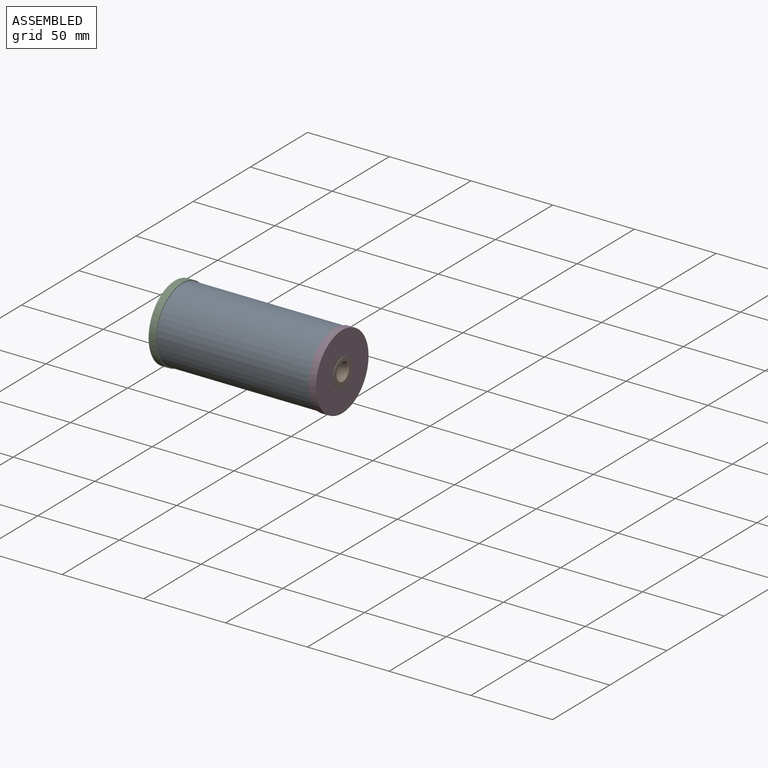
[diagram: assembled view]
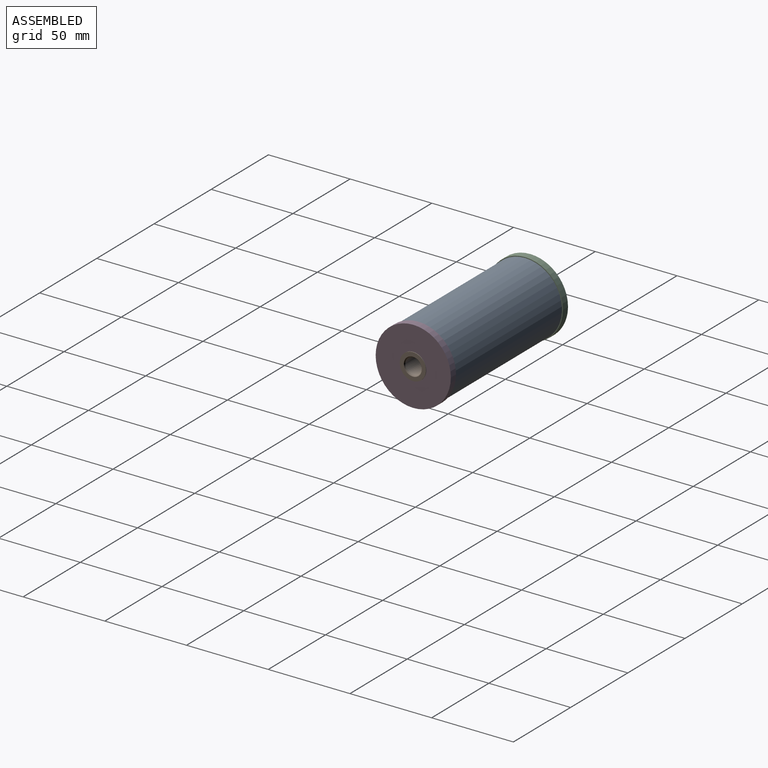
[diagram: assembled view, second angle]
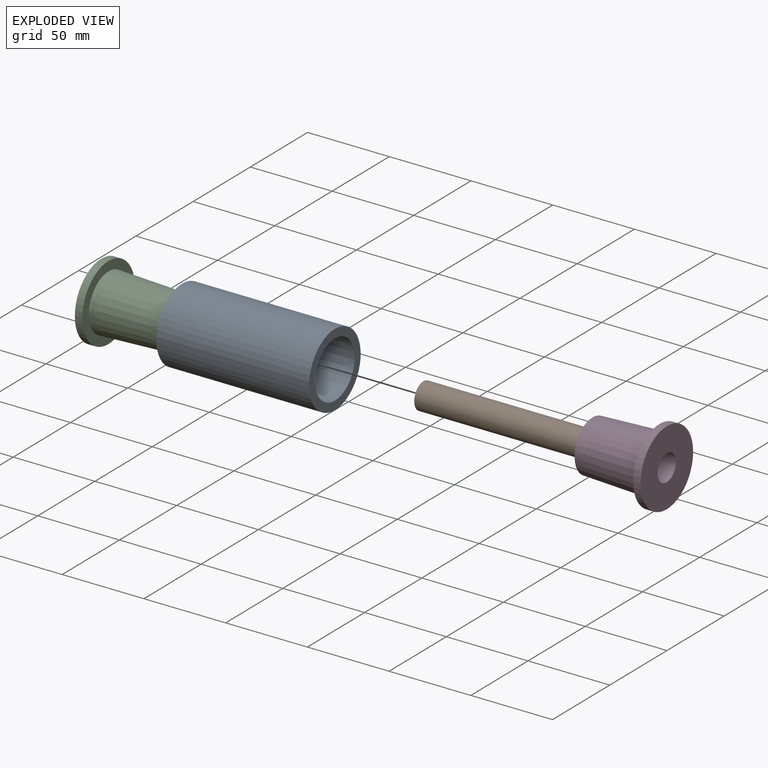
[diagram: exploded view]
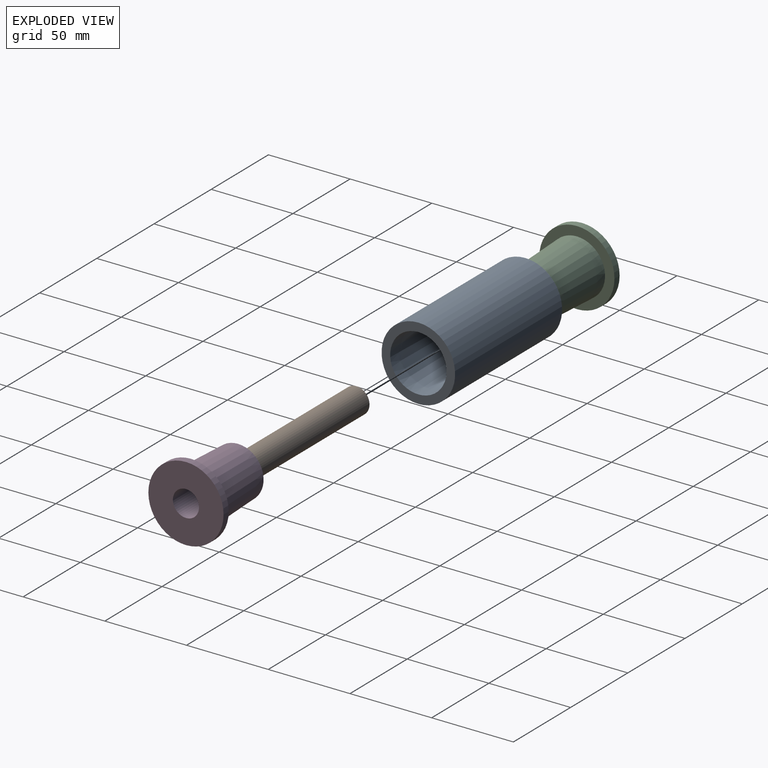
[diagram: exploded view, second angle]
ASSEMBLY  parts=4 mates=4
PART A: 6 faces, bbox 93.5x45x45 mm
  f0: plane 45x45mm, normal (-1,0,0), area 655.6mm2, adj f1,f5
  f1: cone r=15.65mm half-angle=2.2deg, axis (-1,0,0), area 4287.4mm2, adj f0,f2
  f2: cylinder r=15.65mm len=31.3mm, axis (-1,0,0), area 1042.3mm2, adj f1,f3
  f3: cone r=15.65mm half-angle=2.2deg, axis (1,0,0), area 4287.4mm2, adj f2,f4
  f4: plane 45x45mm, normal (1,0,0), area 655.6mm2, adj f3,f5
  f5: cylinder r=22.5mm len=93.5mm, axis (-1,0,0), area 13218.3mm2, adj f0,f4
PART B: 6 faces, bbox 103x16x16 mm
  f0: plane 16x16mm, normal (-1,0,0), area 106mm2, adj f3,f5
  f1: cylinder r=5mm len=102mm, axis (-1,0,0), area 3204.4mm2, adj f4,f5
  f2: plane 16x16mm, normal (1,0,0), area 106mm2, adj f3,f4
  f3: cylinder r=8mm len=103mm, axis (-1,0,0), area 5177.3mm2, adj f0,f2
  f4: cone r=5.5mm half-angle=45deg, axis (1,0,0), area 23.3mm2, adj f1,f2
  f5: cone r=5mm half-angle=45deg, axis (-1,0,0), area 23.3mm2, adj f0,f1
PART C: 6 faces, bbox 45.5x46x46 mm
  f0: plane 46x46mm, normal (1,0,0), area 727.1mm2, adj f1,f5
  f1: cone r=17.25mm half-angle=2.2deg, axis (-1,0,0), area 4239.6mm2, adj f0,f2
  f2: plane 31.28x31.28mm, normal (1,0,0), area 567.3mm2, adj f1,f3
  f3: cylinder r=8mm len=45.5mm, axis (-1,0,0), area 2287.1mm2, adj f2,f4
  f4: plane 46x46mm, normal (-1,0,0), area 1460.8mm2, adj f3,f5
  f5: cylinder r=23mm len=46mm, axis (-1,0,0), area 650.3mm2, adj f0,f4
PART D: same geometry as C
PLACE A rot(axis=(0,0,1),0deg) t=(9.55,83.95,13.97)mm
PLACE B rot(axis=(0,0,1),0deg) t=(4.88,83.95,13.97)mm
PLACE C rot(axis=(0,0,1),0deg) t=(5.12,83.95,13.97)mm
PLACE D rot(axis=(0,0,-1),180deg) t=(107.52,83.95,13.97)mm
MATE cylindrical B.f1 <-> D.f1  axis (-1,0,0) through (56.38,83.95,13.97)mm
MATE cylindrical C.f1 <-> A.f1  axis (-1,0,0) through (30.12,83.95,13.97)mm
MATE cylindrical C.f1 <-> A.f1  axis (-1,0,0) through (30.12,83.95,13.97)mm
MATE cylindrical D.f1 <-> A.f1  axis (1,0,0) through (82.52,83.95,13.97)mm
